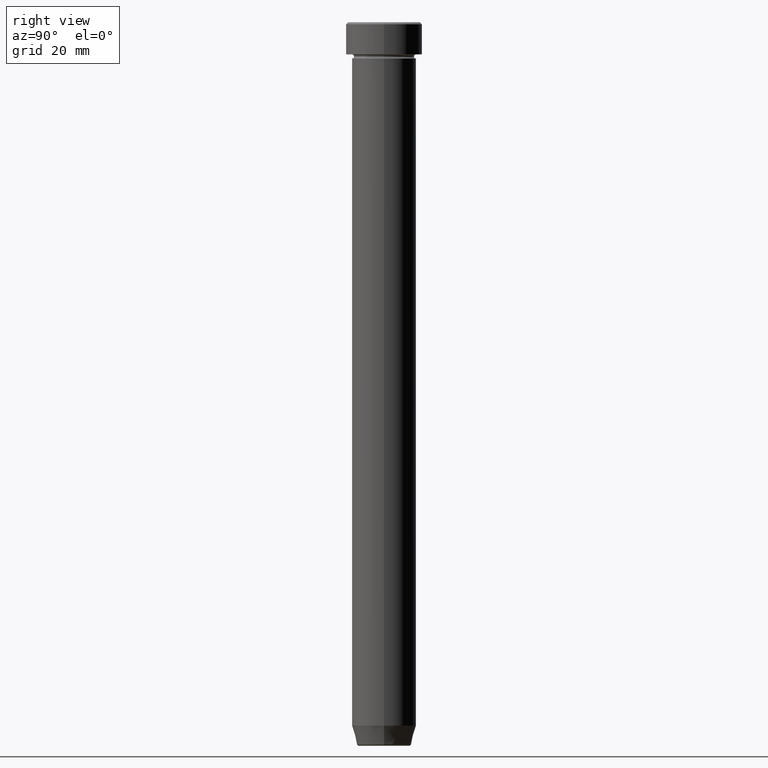
[diagram: clean part render]
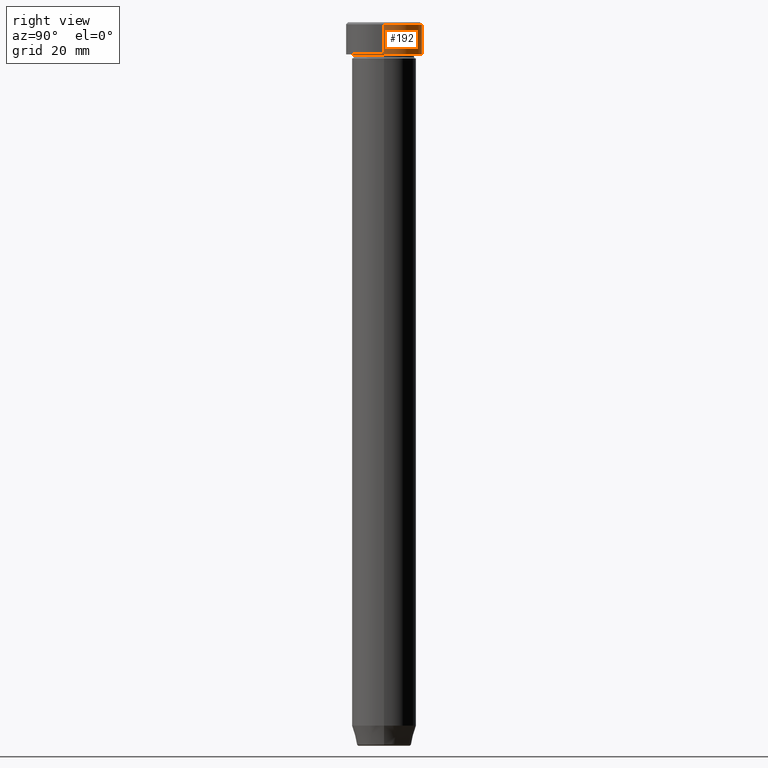
[diagram: same view with one face highlighted and labeled with its STEP entity id]
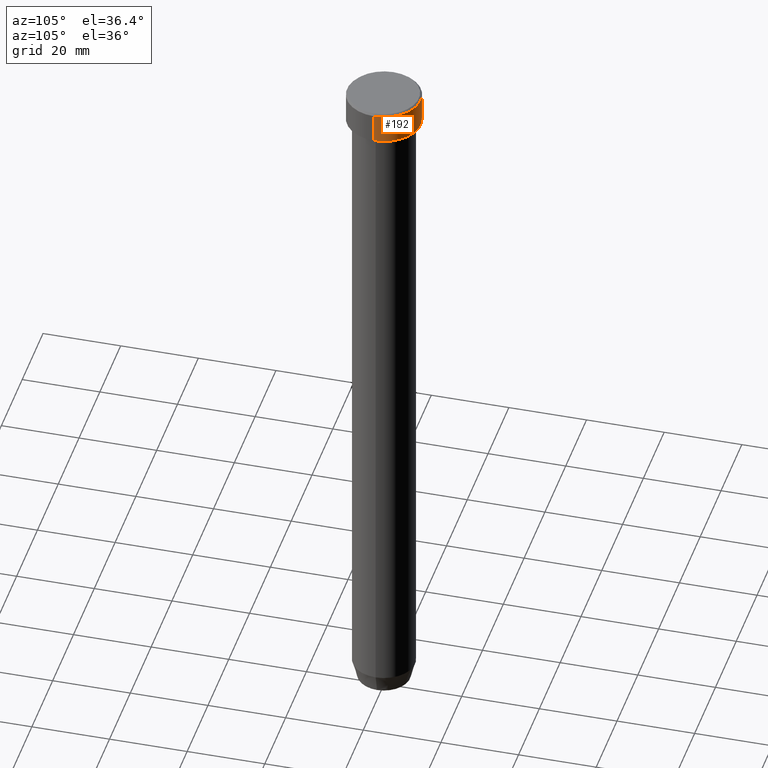
[diagram: same view with one face highlighted and labeled with its STEP entity id]
A machine part, right view. The second image highlights one B-rep face of the part: STEP entity #192.
A second angle (auxiliary view) of the same face is appended — the face is thin or edge-on in the first view.
In plain terms, the highlighted cylindrical surface (partial cylindrical patch) has radius 9.5 mm, axis along (-0, -0, 1).
Its self-contained STEP definition (entity closure, byte-faithful):
#24 = DIRECTION ( 'NONE',  ( -0.000000000000000000, -0.000000000000000000, 1.000000000000000000 ) ) ;
#27 = CARTESIAN_POINT ( 'NONE',  ( 0.000000000000000000, 0.000000000000000000, -8.000000000000000000 ) ) ;
#40 = VERTEX_POINT ( 'NONE', #452 ) ;
#42 = EDGE_CURVE ( 'NONE', #40, #273, #156, .T. ) ;
#50 = AXIS2_PLACEMENT_3D ( 'NONE', #446, #61, #496 ) ;
#58 = CARTESIAN_POINT ( 'NONE',  ( 9.500000000000000000, 0.000000000000000000, -8.000000000000000000 ) ) ;
#61 = DIRECTION ( 'NONE',  ( 0.000000000000000000, 0.000000000000000000, -1.000000000000000000 ) ) ;
#68 = LINE ( 'NONE', #378, #241 ) ;
#79 = AXIS2_PLACEMENT_3D ( 'NONE', #27, #24, #247 ) ;
#115 = AXIS2_PLACEMENT_3D ( 'NONE', #514, #476, #256 ) ;
#121 = VERTEX_POINT ( 'NONE', #58 ) ;
#156 = CIRCLE ( 'NONE', #50, 9.500000000000000000 ) ;
#175 = EDGE_CURVE ( 'NONE', #448, #40, #233, .T. ) ;
#179 = ORIENTED_EDGE ( 'NONE', *, *, #236, .T. ) ;
#188 = DIRECTION ( 'NONE',  ( -0.000000000000000000, -0.000000000000000000, 1.000000000000000000 ) ) ;
#192 = ADVANCED_FACE ( 'NONE', ( #235 ), #505, .T. ) ;
#225 = EDGE_CURVE ( 'NONE', #121, #273, #68, .T. ) ;
#233 = LINE ( 'NONE', #500, #313 ) ;
#235 = FACE_OUTER_BOUND ( 'NONE', #398, .T. ) ;
#236 = EDGE_CURVE ( 'NONE', #121, #448, #421, .T. ) ;
#241 = VECTOR ( 'NONE', #575, 1000.000000000000000 ) ;
#247 = DIRECTION ( 'NONE',  ( 1.000000000000000000, 0.000000000000000000, 0.000000000000000000 ) ) ;
#256 = DIRECTION ( 'NONE',  ( 1.000000000000000000, 0.000000000000000000, 0.000000000000000000 ) ) ;
#273 = VERTEX_POINT ( 'NONE', #523 ) ;
#282 = ORIENTED_EDGE ( 'NONE', *, *, #42, .T. ) ;
#313 = VECTOR ( 'NONE', #188, 1000.000000000000000 ) ;
#354 = ORIENTED_EDGE ( 'NONE', *, *, #175, .T. ) ;
#378 = CARTESIAN_POINT ( 'NONE',  ( 9.500000000000000000, 0.000000000000000000, 0.000000000000000000 ) ) ;
#398 = EDGE_LOOP ( 'NONE', ( #179, #354, #282, #485 ) ) ;
#421 = CIRCLE ( 'NONE', #79, 9.500000000000000000 ) ;
#435 = CARTESIAN_POINT ( 'NONE',  ( -9.500000000000000000, 1.163414459189985485E-15, -8.000000000000000000 ) ) ;
#446 = CARTESIAN_POINT ( 'NONE',  ( 0.000000000000000000, 0.000000000000000000, -0.4999999999999968914 ) ) ;
#448 = VERTEX_POINT ( 'NONE', #435 ) ;
#452 = CARTESIAN_POINT ( 'NONE',  ( -9.500000000000000000, 1.163414459189985485E-15, -0.4999999999999968914 ) ) ;
#476 = DIRECTION ( 'NONE',  ( -0.000000000000000000, -0.000000000000000000, 1.000000000000000000 ) ) ;
#485 = ORIENTED_EDGE ( 'NONE', *, *, #225, .F. ) ;
#496 = DIRECTION ( 'NONE',  ( 1.000000000000000000, 0.000000000000000000, 0.000000000000000000 ) ) ;
#500 = CARTESIAN_POINT ( 'NONE',  ( -9.500000000000000000, 1.163414459189985485E-15, 0.000000000000000000 ) ) ;
#505 = CYLINDRICAL_SURFACE ( 'NONE', #115, 9.500000000000000000 ) ;
#514 = CARTESIAN_POINT ( 'NONE',  ( 0.000000000000000000, 0.000000000000000000, 0.000000000000000000 ) ) ;
#523 = CARTESIAN_POINT ( 'NONE',  ( 9.500000000000000000, 0.000000000000000000, -0.4999999999999968914 ) ) ;
#575 = DIRECTION ( 'NONE',  ( -0.000000000000000000, -0.000000000000000000, 1.000000000000000000 ) ) ;